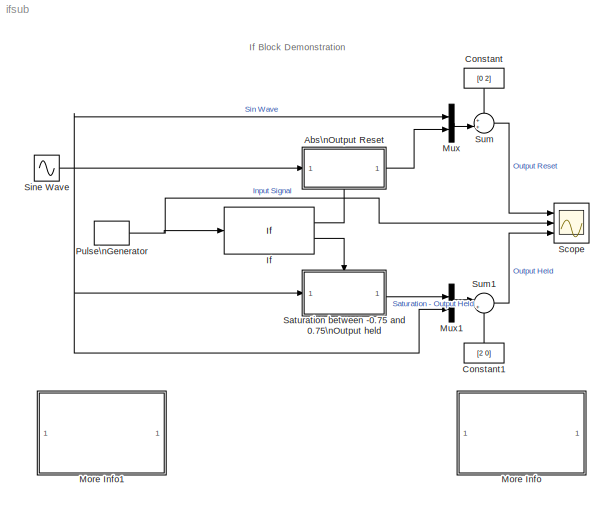
MODEL ifsub
KIND model
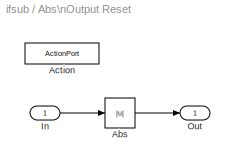
BLOCK [SubSystem] Abs\nOutput Reset
  MinAlgLoopOccurrences = off
  Ports = [1, 1, 0, 0, 0, 0, 0, 1]
  PropExecContextAcrossSSBoundary = on
  RTWSystemCode = Auto
  TreatAsAtomicUnit = on
BLOCK [Abs] Abs\nOutput Reset/Abs
BLOCK [ActionPort] Abs\nOutput Reset/Action
  ActionType = then
  InitializeStates = reset
BLOCK [Inport] Abs\nOutput Reset/In
  IconDisplay = Port number
  LatchInput = off
  Port = 1
BLOCK [Outport] Abs\nOutput Reset/Out
  IconDisplay = Port number
  InitialOutput = 0
  OutputWhenDisabled = reset
BLOCK [Constant] Constant
  Value = [0 2]
BLOCK [Constant] Constant1
  Value = [2 0]
BLOCK [If] If
  Ports = [1, 2]
BLOCK [SubSystem] More Info
  MaskDisplay = disp('Double click\\nhere for\\ninformation on\\nthis demonstration')
  MaskIconFrame = on
  MaskIconOpaque = on
  MaskIconRotate = none
  MaskIconUnits = autoscale
  MinAlgLoopOccurrences = off
  Ports = []
  PropExecContextAcrossSSBoundary = on
  RTWSystemCode = Auto
  TreatAsAtomicUnit = off
BLOCK [SubSystem] More Info1
  MaskDisplay = disp('Double click\\nhere for\\nSimulink Help')
  MaskIconFrame = on
  MaskIconOpaque = on
  MaskIconRotate = none
  MaskIconUnits = autoscale
  MinAlgLoopOccurrences = off
  OpenFcn = simcad(bdroot);
  Ports = []
  PropExecContextAcrossSSBoundary = on
  RTWSystemCode = Auto
  TreatAsAtomicUnit = off
BLOCK [Mux] Mux
  DisplayOption = bar
  Inputs = 2
  Ports = [2, 1]
BLOCK [Mux] Mux1
  DisplayOption = bar
  Inputs = 2
  Ports = [2, 1]
BLOCK [DiscretePulseGenerator] Pulse\nGenerator
  AttributesFormatString = Period: %<period>\\nDuty cycle: %<pulsewidth>%
  Period = 5
  Ports = [0, 1]
  PulseType = Time based
  PulseWidth = 50
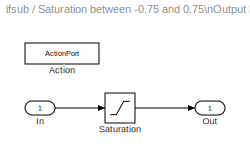
BLOCK [SubSystem] Saturation between -0.75 and 0.75\nOutput held
  MinAlgLoopOccurrences = off
  Ports = [1, 1, 0, 0, 0, 0, 0, 1]
  PropExecContextAcrossSSBoundary = on
  RTWSystemCode = Auto
  TreatAsAtomicUnit = on
BLOCK [ActionPort] Saturation between -0.75 and 0.75\nOutput held/Action
  ActionType = else
BLOCK [Inport] Saturation between -0.75 and 0.75\nOutput held/In
  IconDisplay = Port number
  LatchInput = off
  Port = 1
BLOCK [Outport] Saturation between -0.75 and 0.75\nOutput held/Out
  IconDisplay = Port number
BLOCK [Saturate] Saturation between -0.75 and 0.75\nOutput held/Saturation
  LowerLimit = -0.75
  UpperLimit = 0.75
BLOCK [Scope] Scope
  DataFormat = Structure
  NumInputPorts = 3
  Ports = [3]
  StartFcn = open_system(gcbh)
  TickLabels = on
  TimeRange = 10
  YMax = 3.6~1.1~3.5
  YMin = -1.6~-0.1~-1.5
BLOCK [Sin] Sine Wave
  Ports = [0, 1]
  SampleTime = 0
  SineType = Time based
BLOCK [Sum] Sum
  IconShape = round
  Inputs = ++|
  Ports = [2, 1]
BLOCK [Sum] Sum1
  IconShape = round
  Inputs = |++
  Ports = [2, 1]
ANNOTATION (root): If Block Demonstration
ANNOTATION More Info: If Block Demonstration
ANNOTATION More Info: This demonstration shows what happens when a sign wave is fed into an \nIf block. After running the simulation, the scope shows three plots. This \ndemonstration is designed to compare the If block with enabled subsystems.\n\nThe first of these plots shows the original sine wave and the absolute \nvalue of the original sine wave offset by two. The absolute value of the sine\nwave is only shown whe...<+903ch>
LINE Abs\nOutput Reset/Abs:1 -> Abs\nOutput Reset/Out:1
LINE Abs\nOutput Reset/In:1 -> Abs\nOutput Reset/Abs:1
LINE Abs\nOutput Reset:1 -> Mux:2
LINE Constant1:1 -> Sum1:2
LINE Constant:1 -> Sum:1
LINE If:1 -> Abs\nOutput Reset:ifaction
LINE If:2 -> Saturation between -0.75 and 0.75\nOutput held:ifaction
LINE Mux1:1 -> Sum1:1
LINE Mux:1 -> Sum:2
NET Pulse\nGenerator:1 -> If:1, Scope:2
LINE Saturation between -0.75 and 0.75\nOutput held/In:1 -> Saturation between -0.75 and 0.75\nOutput held/Saturation:1
LINE Saturation between -0.75 and 0.75\nOutput held/Saturation:1 -> Saturation between -0.75 and 0.75\nOutput held/Out:1
LINE Saturation between -0.75 and 0.75\nOutput held:1 -> Mux1:1
NET Sine Wave:1 -> Abs\nOutput Reset:1, Mux1:2, Mux:1, Saturation between -0.75 and 0.75\nOutput held:1
LINE Sum1:1 -> Scope:3
LINE Sum:1 -> Scope:1
note: NET lines group one-source signal fan-out (src -> all destinations, sorted); 1:1 wires keep LINE
